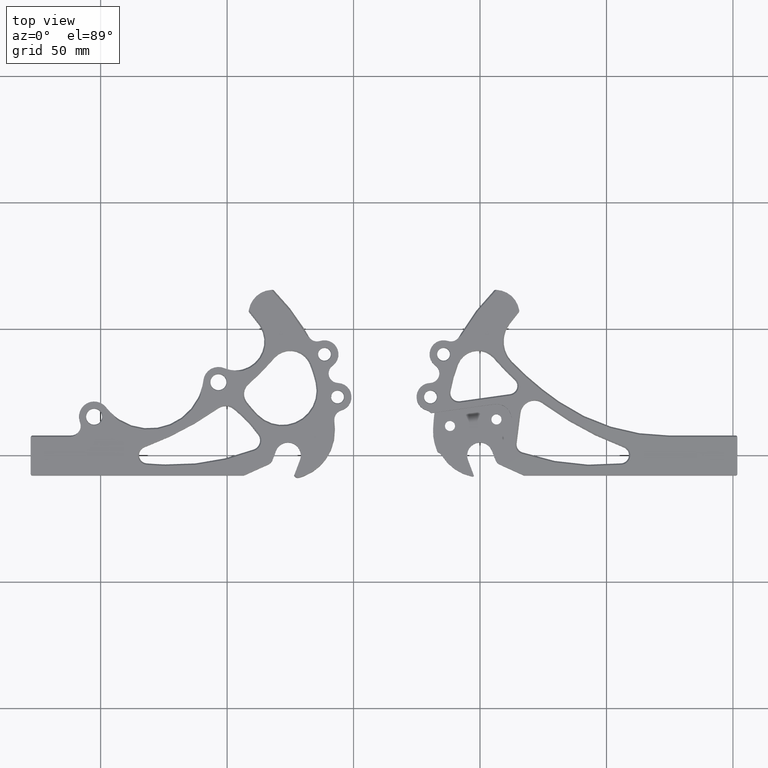
[diagram: clean part render]
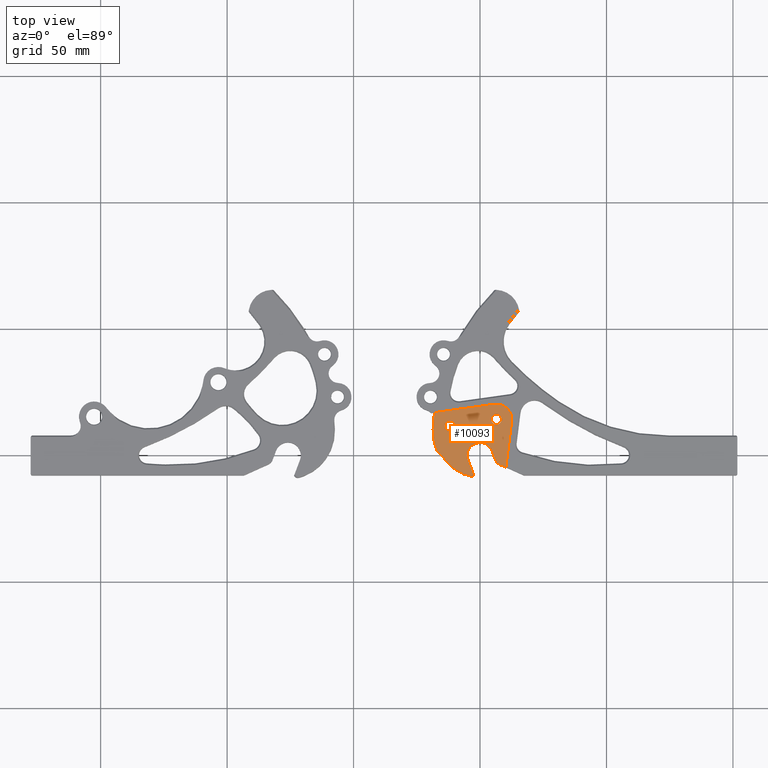
[diagram: same view with one face highlighted and labeled with its STEP entity id]
A machine part, top view. The second image highlights one B-rep face of the part: STEP entity #10093.
In plain terms, the highlighted planar face has unit normal (0, 0, 1).
Its self-contained STEP definition (entity closure, byte-faithful):
#111 = CARTESIAN_POINT ( 'NONE',  ( 13.89097224004999900, -4.620967956312999700, 0.1070000000000000100 ) ) ;
#186 = AXIS2_PLACEMENT_3D ( 'NONE', #2463, #7898, #3226 ) ;
#250 = AXIS2_PLACEMENT_3D ( 'NONE', #5950, #2150, #5190 ) ;
#340 = AXIS2_PLACEMENT_3D ( 'NONE', #4622, #3846, #6887 ) ;
#424 = DIRECTION ( 'NONE',  ( 0.0000000000000000000, 0.0000000000000000000, 1.000000000000000000 ) ) ;
#678 = DIRECTION ( 'NONE',  ( 0.4183620847858801100, -0.9082803344857864900, 0.0000000000000000000 ) ) ;
#770 = VERTEX_POINT ( 'NONE', #4319 ) ;
#925 = CIRCLE ( 'NONE', #4628, 0.07869999999999935400 ) ;
#969 = CARTESIAN_POINT ( 'NONE',  ( 14.86529966378100000, -4.313595380585000200, 0.1070000000000000100 ) ) ;
#1097 = ORIENTED_EDGE ( 'NONE', *, *, #2648, .T. ) ;
#1118 = VECTOR ( 'NONE', #1482, 39.37007874015748100 ) ;
#1138 = DIRECTION ( 'NONE',  ( 1.000000000000000000, 0.0000000000000000000, 0.0000000000000000000 ) ) ;
#1142 = LINE ( 'NONE', #2906, #8934 ) ;
#1204 = CARTESIAN_POINT ( 'NONE',  ( 13.78719842071795700, -4.634790158124269000, 0.1070000000000000100 ) ) ;
#1233 = CARTESIAN_POINT ( 'NONE',  ( 14.40963525030836000, -4.909304992975666700, 0.1070000000000000100 ) ) ;
#1355 = ORIENTED_EDGE ( 'NONE', *, *, #2224, .F. ) ;
#1371 = ORIENTED_EDGE ( 'NONE', *, *, #2851, .T. ) ;
#1482 = DIRECTION ( 'NONE',  ( -0.9912457952158704200, -0.1320294416668374200, -0.0000000000000000000 ) ) ;
#1505 = CARTESIAN_POINT ( 'NONE',  ( 15.18064644580819700, -4.770214999900835200, 0.1070000000000000100 ) ) ;
#1511 = CARTESIAN_POINT ( 'NONE',  ( 14.08934091221846600, -5.290753241831786200, 0.1070000000000000100 ) ) ;
#1519 = CIRCLE ( 'NONE', #9306, 0.7499999999999720200 ) ;
#1524 = CARTESIAN_POINT ( 'NONE',  ( 14.14477814253099900, -4.265411400459000500, 0.1070000000000000100 ) ) ;
#1570 = EDGE_CURVE ( 'NONE', #5141, #5327, #9689, .T. ) ;
#1605 = VERTEX_POINT ( 'NONE', #9026 ) ;
#1641 = FACE_BOUND ( 'NONE', #5938, .T. ) ;
#1894 = ORIENTED_EDGE ( 'NONE', *, *, #9226, .T. ) ;
#1905 = DIRECTION ( 'NONE',  ( 1.000000000000000000, 0.0000000000000000000, 0.0000000000000000000 ) ) ;
#1963 = ORIENTED_EDGE ( 'NONE', *, *, #2509, .T. ) ;
#1974 = DIRECTION ( 'NONE',  ( 1.000000000000000000, 0.0000000000000000000, 0.0000000000000000000 ) ) ;
#1984 = CIRCLE ( 'NONE', #3663, 0.2386999999995933200 ) ;
#2016 = CARTESIAN_POINT ( 'NONE',  ( 14.78705368874083000, -4.147690859468650800, 0.1070000000000000100 ) ) ;
#2150 = DIRECTION ( 'NONE',  ( 0.0000000000000000000, 0.0000000000000000000, 1.000000000000000000 ) ) ;
#2184 = ORIENTED_EDGE ( 'NONE', *, *, #3856, .T. ) ;
#2203 = CARTESIAN_POINT ( 'NONE',  ( 15.06267862878335100, -4.540476651019777600, 0.1070000000000000100 ) ) ;
#2223 = DIRECTION ( 'NONE',  ( 1.000000000000000000, 0.0000000000000000000, 0.0000000000000000000 ) ) ;
#2224 = EDGE_CURVE ( 'NONE', #6805, #7231, #925, .T. ) ;
#2423 = DIRECTION ( 'NONE',  ( 0.0000000000000000000, 0.0000000000000000000, 1.000000000000000000 ) ) ;
#2449 = CARTESIAN_POINT ( 'NONE',  ( 14.15801504592543800, -4.234702581587109500, 0.1070000000000000100 ) ) ;
#2463 = CARTESIAN_POINT ( 'NONE',  ( 14.30614790946177300, -5.190889990455506400, 0.1070000000000000100 ) ) ;
#2485 = CIRCLE ( 'NONE', #3813, 0.07869999999999935400 ) ;
#2509 = EDGE_CURVE ( 'NONE', #770, #3242, #7007, .T. ) ;
#2563 = EDGE_CURVE ( 'NONE', #6145, #9121, #6750, .T. ) ;
#2585 = DIRECTION ( 'NONE',  ( -0.7942788857016304100, 0.6075533324150040900, 0.0000000000000000000 ) ) ;
#2597 = LINE ( 'NONE', #1524, #4400 ) ;
#2637 = DIRECTION ( 'NONE',  ( 1.000000000000000000, 0.0000000000000000000, 0.0000000000000000000 ) ) ;
#2648 = EDGE_CURVE ( 'NONE', #5613, #5953, #7857, .T. ) ;
#2672 = CARTESIAN_POINT ( 'NONE',  ( 14.16849920467399900, -4.262810986296999600, 0.1070000000000000100 ) ) ;
#2710 = AXIS2_PLACEMENT_3D ( 'NONE', #9936, #9218, #8886 ) ;
#2840 = ORIENTED_EDGE ( 'NONE', *, *, #3325, .T. ) ;
#2851 = EDGE_CURVE ( 'NONE', #3242, #1605, #4542, .T. ) ;
#2906 = CARTESIAN_POINT ( 'NONE',  ( 13.78719842071795700, -4.634790158124269000, 0.1070000000000000100 ) ) ;
#2965 = CARTESIAN_POINT ( 'NONE',  ( 14.14477814253099900, -4.265411400459000500, 0.1070000000000000100 ) ) ;
#3095 = CIRCLE ( 'NONE', #8051, 0.01600000000000114200 ) ;
#3133 = EDGE_LOOP ( 'NONE', ( #8126, #1355 ) ) ;
#3226 = DIRECTION ( 'NONE',  ( 1.000000000000000000, 0.0000000000000000000, 0.0000000000000000000 ) ) ;
#3232 = EDGE_CURVE ( 'NONE', #3772, #4820, #7845, .T. ) ;
#3242 = VERTEX_POINT ( 'NONE', #2449 ) ;
#3274 = CARTESIAN_POINT ( 'NONE',  ( 14.45935544567532800, -5.373934089743391600, 0.1070000000000000100 ) ) ;
#3325 = EDGE_CURVE ( 'NONE', #6324, #7843, #1142, .T. ) ;
#3327 = CARTESIAN_POINT ( 'NONE',  ( 13.98341983451200000, -4.645588507304998900, 0.1070000000000000100 ) ) ;
#3439 = ORIENTED_EDGE ( 'NONE', *, *, #3232, .F. ) ;
#3621 = AXIS2_PLACEMENT_3D ( 'NONE', #9114, #3658, #6014 ) ;
#3658 = DIRECTION ( 'NONE',  ( 0.0000000000000000000, 0.0000000000000000000, 1.000000000000000000 ) ) ;
#3663 = AXIS2_PLACEMENT_3D ( 'NONE', #5817, #8803, #1138 ) ;
#3683 = FACE_OUTER_BOUND ( 'NONE', #8872, .T. ) ;
#3722 = AXIS2_PLACEMENT_3D ( 'NONE', #2016, #4231, #2637 ) ;
#3772 = VERTEX_POINT ( 'NONE', #3986 ) ;
#3813 = AXIS2_PLACEMENT_3D ( 'NONE', #7913, #8406, #9470 ) ;
#3846 = DIRECTION ( 'NONE',  ( -0.0000000000000000000, -0.0000000000000000000, -1.000000000000000000 ) ) ;
#3856 = EDGE_CURVE ( 'NONE', #7945, #5613, #10044, .T. ) ;
#3986 = CARTESIAN_POINT ( 'NONE',  ( 14.38484790946200000, -5.190889990455506400, 0.1070000000000000100 ) ) ;
#4074 = EDGE_CURVE ( 'NONE', #1605, #4383, #3095, .T. ) ;
#4192 = EDGE_CURVE ( 'NONE', #9121, #770, #4422, .T. ) ;
#4208 = CARTESIAN_POINT ( 'NONE',  ( 14.94467518841699900, -4.722316254685000400, 0.1070000000000000100 ) ) ;
#4231 = DIRECTION ( 'NONE',  ( -0.0000000000000000000, -0.0000000000000000000, -1.000000000000000000 ) ) ;
#4319 = CARTESIAN_POINT ( 'NONE',  ( 14.72933046424379300, -4.264172743698194000, 0.1070000000000000100 ) ) ;
#4383 = VERTEX_POINT ( 'NONE', #2965 ) ;
#4400 = VECTOR ( 'NONE', #9590, 39.37007874015748900 ) ;
#4422 = CIRCLE ( 'NONE', #3722, 0.1300000000000010600 ) ;
#4425 = VECTOR ( 'NONE', #2585, 39.37007874015748900 ) ;
#4489 = DIRECTION ( 'NONE',  ( 1.000000000000000000, 0.0000000000000000000, 0.0000000000000000000 ) ) ;
#4542 = CIRCLE ( 'NONE', #8128, 0.02999999999999940600 ) ;
#4618 = CARTESIAN_POINT ( 'NONE',  ( 14.78727518841700000, -4.722316254685000400, 0.1070000000000000100 ) ) ;
#4622 = CARTESIAN_POINT ( 'NONE',  ( 14.22692041546600100, -4.580043739679999800, 0.1070000000000000100 ) ) ;
#4628 = AXIS2_PLACEMENT_3D ( 'NONE', #5046, #424, #5791 ) ;
#4671 = CARTESIAN_POINT ( 'NONE',  ( 14.34843120904600000, -4.421187935851999200, 0.1070000000000000100 ) ) ;
#4679 = ORIENTED_EDGE ( 'NONE', *, *, #6470, .T. ) ;
#4820 = VERTEX_POINT ( 'NONE', #9333 ) ;
#5046 = CARTESIAN_POINT ( 'NONE',  ( 14.86597518841700000, -4.722316254685000400, 0.1070000000000000100 ) ) ;
#5099 = EDGE_CURVE ( 'NONE', #7231, #6805, #2485, .T. ) ;
#5129 = EDGE_CURVE ( 'NONE', #7843, #7945, #1984, .T. ) ;
#5141 = VERTEX_POINT ( 'NONE', #4671 ) ;
#5146 = LINE ( 'NONE', #3327, #8805 ) ;
#5190 = DIRECTION ( 'NONE',  ( 1.000000000000000000, 0.0000000000000000000, 0.0000000000000000000 ) ) ;
#5239 = PLANE ( 'NONE',  #3621 ) ;
#5327 = VERTEX_POINT ( 'NONE', #5348 ) ;
#5348 = CARTESIAN_POINT ( 'NONE',  ( 14.10540962188600000, -4.738899543507999500, 0.1070000000000000100 ) ) ;
#5453 = ORIENTED_EDGE ( 'NONE', *, *, #4192, .T. ) ;
#5464 = ORIENTED_EDGE ( 'NONE', *, *, #5129, .T. ) ;
#5613 = VERTEX_POINT ( 'NONE', #1505 ) ;
#5791 = DIRECTION ( 'NONE',  ( 1.000000000000000000, 0.0000000000000000000, 0.0000000000000000000 ) ) ;
#5817 = CARTESIAN_POINT ( 'NONE',  ( 14.30614748960171500, -5.190890345803447700, 0.1070000000000000100 ) ) ;
#5844 = ORIENTED_EDGE ( 'NONE', *, *, #4074, .T. ) ;
#5874 = CARTESIAN_POINT ( 'NONE',  ( 14.15449920467400000, -4.252703098022719200, 0.1070000000000000100 ) ) ;
#5938 = EDGE_LOOP ( 'NONE', ( #6506, #3439 ) ) ;
#5950 = CARTESIAN_POINT ( 'NONE',  ( 13.90747605355254800, -4.744873662960729100, 0.1070000000000000100 ) ) ;
#5953 = VERTEX_POINT ( 'NONE', #2203 ) ;
#6014 = DIRECTION ( 'NONE',  ( 1.000000000000000000, 0.0000000000000000000, -0.0000000000000000000 ) ) ;
#6086 = EDGE_CURVE ( 'NONE', #8133, #6399, #7599, .T. ) ;
#6093 = DIRECTION ( 'NONE',  ( 0.0000000000000000000, 0.0000000000000000000, 1.000000000000000000 ) ) ;
#6139 = VECTOR ( 'NONE', #6900, 39.37007874015748900 ) ;
#6145 = VERTEX_POINT ( 'NONE', #969 ) ;
#6307 = ORIENTED_EDGE ( 'NONE', *, *, #1570, .T. ) ;
#6324 = VERTEX_POINT ( 'NONE', #1204 ) ;
#6399 = VERTEX_POINT ( 'NONE', #111 ) ;
#6470 = EDGE_CURVE ( 'NONE', #4383, #5141, #2597, .T. ) ;
#6485 = CARTESIAN_POINT ( 'NONE',  ( 14.86529966378100000, -4.313595380585000200, 0.1070000000000000100 ) ) ;
#6506 = ORIENTED_EDGE ( 'NONE', *, *, #9863, .F. ) ;
#6533 = CARTESIAN_POINT ( 'NONE',  ( 14.81452284367161500, -4.274755589143681300, 0.1070000000000000100 ) ) ;
#6662 = DIRECTION ( 'NONE',  ( 0.0000000000000000000, 0.0000000000000000000, 1.000000000000000000 ) ) ;
#6750 = LINE ( 'NONE', #6485, #4425 ) ;
#6805 = VERTEX_POINT ( 'NONE', #4208 ) ;
#6887 = DIRECTION ( 'NONE',  ( 1.000000000000000000, 0.0000000000000000000, 0.0000000000000000000 ) ) ;
#6900 = DIRECTION ( 'NONE',  ( 0.7668374402188501400, 0.6418413669113275400, -0.0000000000000000000 ) ) ;
#6912 = CARTESIAN_POINT ( 'NONE',  ( 13.78719842071795700, -4.634790158124269000, 0.1070000000000000100 ) ) ;
#7007 = CIRCLE ( 'NONE', #8110, 0.7199999999999988600 ) ;
#7019 = EDGE_CURVE ( 'NONE', #5327, #8133, #5146, .T. ) ;
#7070 = DIRECTION ( 'NONE',  ( 1.000000000000000000, 0.0000000000000000000, 0.0000000000000000000 ) ) ;
#7175 = EDGE_CURVE ( 'NONE', #6399, #6324, #7335, .T. ) ;
#7203 = CARTESIAN_POINT ( 'NONE',  ( 15.22118612445370500, -4.736283371903442500, 0.1070000000000000100 ) ) ;
#7231 = VERTEX_POINT ( 'NONE', #4618 ) ;
#7256 = ORIENTED_EDGE ( 'NONE', *, *, #6086, .T. ) ;
#7335 = LINE ( 'NONE', #6912, #1118 ) ;
#7344 = DIRECTION ( 'NONE',  ( 0.0000000000000000000, 0.0000000000000000000, 1.000000000000000000 ) ) ;
#7459 = DIRECTION ( 'NONE',  ( 0.0000000000000000000, 0.0000000000000000000, 1.000000000000000000 ) ) ;
#7599 = CIRCLE ( 'NONE', #250, 0.1249999999999993500 ) ;
#7679 = CARTESIAN_POINT ( 'NONE',  ( 14.40963485589149900, -4.909304294624248200, 0.1070000000000000100 ) ) ;
#7843 = VERTEX_POINT ( 'NONE', #1511 ) ;
#7845 = CIRCLE ( 'NONE', #2710, 0.07870000000022664400 ) ;
#7857 = CIRCLE ( 'NONE', #8512, 3.249999999999880500 ) ;
#7867 = CARTESIAN_POINT ( 'NONE',  ( 12.23282227958599800, -6.138729773308999600, 0.1070000000000000100 ) ) ;
#7898 = DIRECTION ( 'NONE',  ( 0.0000000000000000000, 0.0000000000000000000, 1.000000000000000000 ) ) ;
#7913 = CARTESIAN_POINT ( 'NONE',  ( 14.86597518841700000, -4.722316254685000400, 0.1070000000000000100 ) ) ;
#7945 = VERTEX_POINT ( 'NONE', #3274 ) ;
#8019 = ORIENTED_EDGE ( 'NONE', *, *, #7019, .T. ) ;
#8051 = AXIS2_PLACEMENT_3D ( 'NONE', #5874, #7459, #1974 ) ;
#8087 = FACE_BOUND ( 'NONE', #3133, .T. ) ;
#8110 = AXIS2_PLACEMENT_3D ( 'NONE', #7679, #6093, #2223 ) ;
#8126 = ORIENTED_EDGE ( 'NONE', *, *, #5099, .F. ) ;
#8128 = AXIS2_PLACEMENT_3D ( 'NONE', #2672, #7344, #1905 ) ;
#8133 = VERTEX_POINT ( 'NONE', #9718 ) ;
#8406 = DIRECTION ( 'NONE',  ( 0.0000000000000000000, 0.0000000000000000000, 1.000000000000000000 ) ) ;
#8512 = AXIS2_PLACEMENT_3D ( 'NONE', #7867, #2423, #7070 ) ;
#8711 = CIRCLE ( 'NONE', #186, 0.07870000000022664400 ) ;
#8799 = DIRECTION ( 'NONE',  ( -0.7942801356572416500, 0.6075516982943209900, -0.0000000000000000000 ) ) ;
#8802 = ORIENTED_EDGE ( 'NONE', *, *, #7175, .T. ) ;
#8803 = DIRECTION ( 'NONE',  ( 0.0000000000000000000, 0.0000000000000000000, 1.000000000000000000 ) ) ;
#8805 = VECTOR ( 'NONE', #8799, 39.37007874015748900 ) ;
#8872 = EDGE_LOOP ( 'NONE', ( #2184, #1097, #1894, #9447, #5453, #1963, #1371, #5844, #4679, #6307, #8019, #7256, #8802, #2840, #5464 ) ) ;
#8886 = DIRECTION ( 'NONE',  ( 1.000000000000000000, 0.0000000000000000000, 0.0000000000000000000 ) ) ;
#8934 = VECTOR ( 'NONE', #678, 39.37007874015748100 ) ;
#9026 = CARTESIAN_POINT ( 'NONE',  ( 14.13907554711384600, -4.256958775109522400, 0.1070000000000000100 ) ) ;
#9114 = CARTESIAN_POINT ( 'NONE',  ( 14.30614748960171500, -5.190890345803447700, 0.1070000000000000100 ) ) ;
#9121 = VERTEX_POINT ( 'NONE', #6533 ) ;
#9218 = DIRECTION ( 'NONE',  ( 0.0000000000000000000, 0.0000000000000000000, 1.000000000000000000 ) ) ;
#9226 = EDGE_CURVE ( 'NONE', #5953, #6145, #1519, .T. ) ;
#9306 = AXIS2_PLACEMENT_3D ( 'NONE', #1233, #6662, #4489 ) ;
#9333 = CARTESIAN_POINT ( 'NONE',  ( 14.22744790946154800, -5.190889990455506400, 0.1070000000000000100 ) ) ;
#9447 = ORIENTED_EDGE ( 'NONE', *, *, #2563, .T. ) ;
#9470 = DIRECTION ( 'NONE',  ( 1.000000000000000000, 0.0000000000000000000, 0.0000000000000000000 ) ) ;
#9590 = DIRECTION ( 'NONE',  ( 0.7942790901166245600, -0.6075530651749746500, 0.0000000000000000000 ) ) ;
#9689 = CIRCLE ( 'NONE', #340, 0.2000000984156796400 ) ;
#9718 = CARTESIAN_POINT ( 'NONE',  ( 13.98341983451200000, -4.645588507304998900, 0.1070000000000000100 ) ) ;
#9863 = EDGE_CURVE ( 'NONE', #4820, #3772, #8711, .T. ) ;
#9936 = CARTESIAN_POINT ( 'NONE',  ( 14.30614790946177300, -5.190889990455506400, 0.1070000000000000100 ) ) ;
#10044 = LINE ( 'NONE', #7203, #6139 ) ;
#10093 = ADVANCED_FACE ( 'NONE', ( #8087, #1641, #3683 ), #5239, .T. ) ;